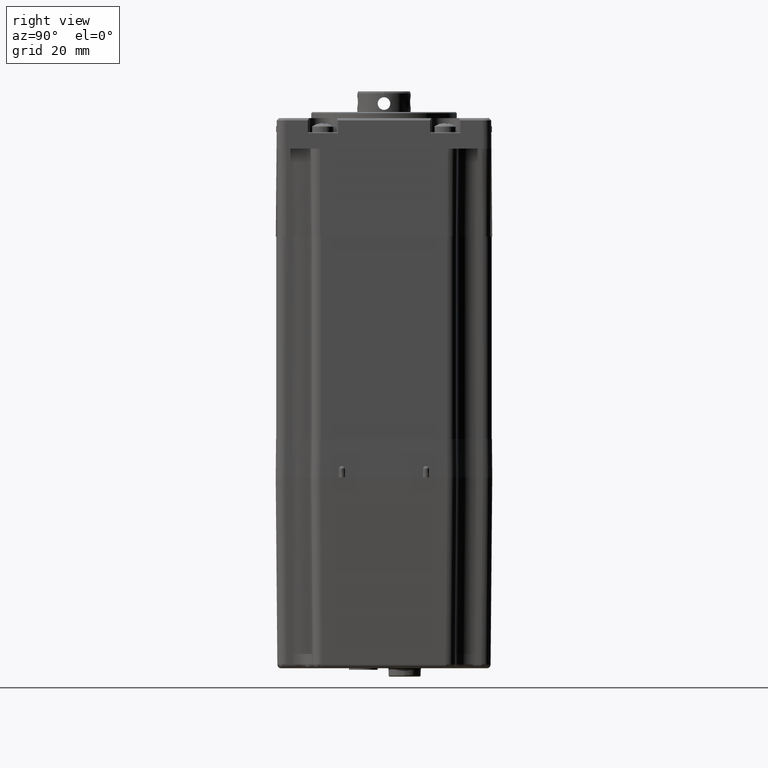
[diagram: clean part render]
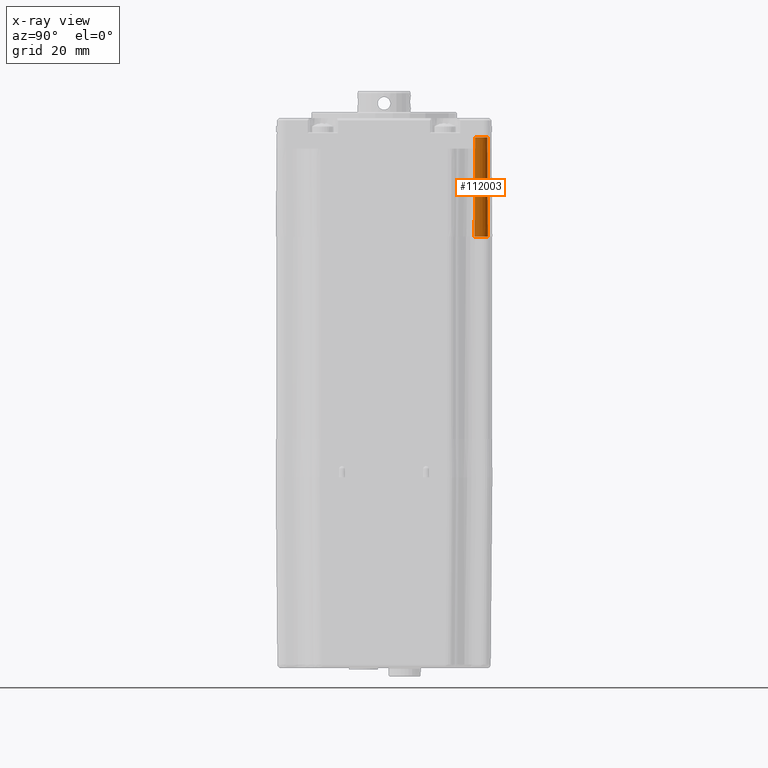
[diagram: x-ray — body ghosted, one internal face saturated and labeled with its STEP entity id]
A machine part, right view, then the same camera in x-ray: the body is ghosted and one INTERNAL B-rep face — a face not visible from any outside direction — is saturated and labeled: STEP entity #112003.
In plain terms, the highlighted conical surface has half-angle 0.3 deg.
Its self-contained STEP definition (entity closure, byte-faithful):
#3029 = EDGE_LOOP ( 'NONE', ( #35808, #121177, #38912, #46345 ) ) ;
#5793 = FACE_OUTER_BOUND ( 'NONE', #3029, .T. ) ;
#14099 = AXIS2_PLACEMENT_3D ( 'NONE', #123503, #15960, #84601 ) ;
#15960 = DIRECTION ( 'NONE',  ( 0.0000000000000000000, 0.0000000000000000000, -1.000000000000000000 ) ) ;
#20415 = VERTEX_POINT ( 'NONE', #45973 ) ;
#23015 = VECTOR ( 'NONE', #46149, 1000.000000000000114 ) ;
#27342 = CARTESIAN_POINT ( 'NONE',  ( -15.99999999999960565, 27.05170378158826949, 35.89999999999996305 ) ) ;
#28402 = VERTEX_POINT ( 'NONE', #111306 ) ;
#29436 = CARTESIAN_POINT ( 'NONE',  ( -15.99999999999961098, 25.44999999999919993, 9.999999999999968026 ) ) ;
#34919 = EDGE_CURVE ( 'NONE', #110917, #90450, #62972, .T. ) ;
#35808 = ORIENTED_EDGE ( 'NONE', *, *, #34919, .F. ) ;
#38912 = ORIENTED_EDGE ( 'NONE', *, *, #109716, .F. ) ;
#45973 = CARTESIAN_POINT ( 'NONE',  ( -15.99999999999960565, 23.71268289622249270, 9.999999999999968026 ) ) ;
#46149 = DIRECTION ( 'NONE',  ( -1.282441269319862909E-18, 0.005235963831419591756, -0.9999862922474268556 ) ) ;
#46345 = ORIENTED_EDGE ( 'NONE', *, *, #82694, .F. ) ;
#51863 = DIRECTION ( 'NONE',  ( 0.0000000000000000000, -1.000000000000000000, 0.0000000000000000000 ) ) ;
#54699 = CARTESIAN_POINT ( 'NONE',  ( -15.99999999999960565, 27.02499999999919922, 40.99999999999996447 ) ) ;
#62520 = DIRECTION ( 'NONE',  ( -0.0000000000000000000, -0.0000000000000000000, -1.000000000000000000 ) ) ;
#62972 = CIRCLE ( 'NONE', #65822, 1.601703781589070674 ) ;
#65822 = AXIS2_PLACEMENT_3D ( 'NONE', #71502, #62520, #51863 ) ;
#67770 = AXIS2_PLACEMENT_3D ( 'NONE', #29436, #89098, #106660 ) ;
#71502 = CARTESIAN_POINT ( 'NONE',  ( -15.99999999999968381, 25.44999999999919993, 35.89999999999996305 ) ) ;
#71593 = LINE ( 'NONE', #97408, #88280 ) ;
#72851 = EDGE_CURVE ( 'NONE', #110917, #28402, #91685, .T. ) ;
#73803 = CIRCLE ( 'NONE', #67770, 1.737317103776704563 ) ;
#76871 = CARTESIAN_POINT ( 'NONE',  ( -15.99999999999968381, 23.84829621841012681, 35.89999999999996305 ) ) ;
#82694 = EDGE_CURVE ( 'NONE', #90450, #20415, #71593, .T. ) ;
#84601 = DIRECTION ( 'NONE',  ( 0.0000000000000000000, -1.000000000000000000, 0.0000000000000000000 ) ) ;
#88280 = VECTOR ( 'NONE', #100823, 1000.000000000000114 ) ;
#89098 = DIRECTION ( 'NONE',  ( 0.0000000000000000000, 0.0000000000000000000, 1.000000000000000000 ) ) ;
#90450 = VERTEX_POINT ( 'NONE', #76871 ) ;
#91685 = LINE ( 'NONE', #54699, #23015 ) ;
#92824 = CONICAL_SURFACE ( 'NONE', #14099, 1.574999999999999956, 0.005235987755983000265 ) ;
#97408 = CARTESIAN_POINT ( 'NONE',  ( -15.99999999999960565, 23.87499999999920064, 40.99999999999996447 ) ) ;
#100823 = DIRECTION ( 'NONE',  ( 6.412206346599314543E-19, -0.005235963831419591756, -0.9999862922474268556 ) ) ;
#106660 = DIRECTION ( 'NONE',  ( 0.0000000000000000000, -1.000000000000000000, 0.0000000000000000000 ) ) ;
#109716 = EDGE_CURVE ( 'NONE', #20415, #28402, #73803, .T. ) ;
#110917 = VERTEX_POINT ( 'NONE', #27342 ) ;
#111306 = CARTESIAN_POINT ( 'NONE',  ( -15.99999999999960565, 27.18731710377590360, 9.999999999999968026 ) ) ;
#112003 = ADVANCED_FACE ( 'NONE', ( #5793 ), #92824, .F. ) ;
#121177 = ORIENTED_EDGE ( 'NONE', *, *, #72851, .T. ) ;
#123503 = CARTESIAN_POINT ( 'NONE',  ( -15.99999999999960565, 25.44999999999919993, 40.99999999999996447 ) ) ;